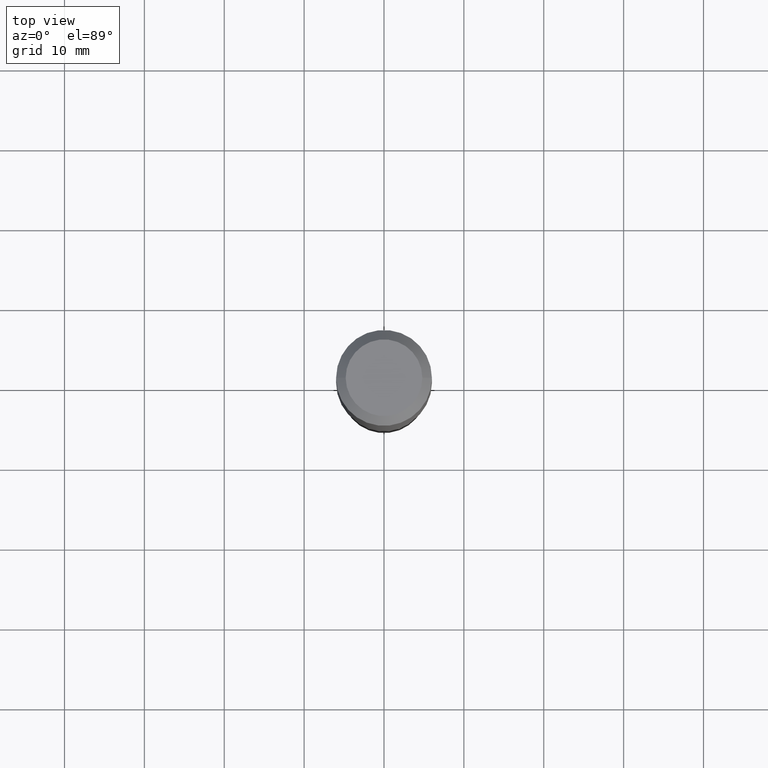
[diagram: clean part render]
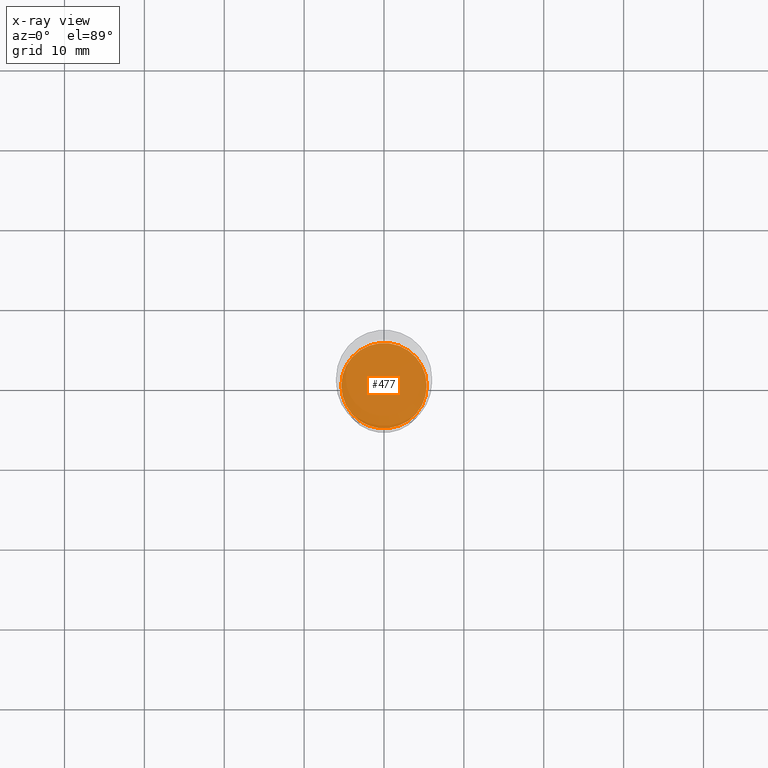
[diagram: x-ray — body ghosted, one internal face saturated and labeled with its STEP entity id]
A machine part, top view, then the same camera in x-ray: the body is ghosted and one INTERNAL B-rep face — a face not visible from any outside direction — is saturated and labeled: STEP entity #477.
In plain terms, the highlighted planar face has unit normal (-0, 0, 1).
Its self-contained STEP definition (entity closure, byte-faithful):
#67 = CARTESIAN_POINT ( 'NONE',  ( 5.564175174713041439E-29, -7.944167490269808896E-15, -2.275300000000000100 ) ) ;
#70 = ORIENTED_EDGE ( 'NONE', *, *, #233, .F. ) ;
#82 = AXIS2_PLACEMENT_3D ( 'NONE', #333, #181, #259 ) ;
#102 = AXIS2_PLACEMENT_3D ( 'NONE', #67, #227, #384 ) ;
#141 = EDGE_LOOP ( 'NONE', ( #70, #423 ) ) ;
#164 = VERTEX_POINT ( 'NONE', #501 ) ;
#176 = FACE_OUTER_BOUND ( 'NONE', #141, .T. ) ;
#181 = DIRECTION ( 'NONE',  ( -2.438088387897960049E-29, 3.491481338843145188E-15, 1.000000000000000000 ) ) ;
#183 = VERTEX_POINT ( 'NONE', #421 ) ;
#227 = DIRECTION ( 'NONE',  ( -2.445468806185136597E-29, 3.491481338843145583E-15, 1.000000000000000000 ) ) ;
#233 = EDGE_CURVE ( 'NONE', #164, #183, #300, .T. ) ;
#259 = DIRECTION ( 'NONE',  ( 1.000000000000000000, -6.982962677686265922E-15, 4.876176775795935793E-29 ) ) ;
#300 = CIRCLE ( 'NONE', #363, 0.2104499999999999982 ) ;
#318 = CIRCLE ( 'NONE', #102, 0.2104499999999999982 ) ;
#333 = CARTESIAN_POINT ( 'NONE',  ( 3.501713020317568181E-29, -1.089773068341986778E-14, -2.275300000000000100 ) ) ;
#345 = DIRECTION ( 'NONE',  ( -2.445468806185136597E-29, 3.491481338843145583E-15, 1.000000000000000000 ) ) ;
#353 = DIRECTION ( 'NONE',  ( 1.000000000000000000, -6.982962677686264344E-15, 0.000000000000000000 ) ) ;
#363 = AXIS2_PLACEMENT_3D ( 'NONE', #388, #345, #353 ) ;
#384 = DIRECTION ( 'NONE',  ( 1.000000000000000000, -6.982962677686264344E-15, 0.000000000000000000 ) ) ;
#388 = CARTESIAN_POINT ( 'NONE',  ( 5.564175174713041439E-29, -7.944167490269808896E-15, -2.275300000000000100 ) ) ;
#421 = CARTESIAN_POINT ( 'NONE',  ( -0.2104499999999999982, -6.446181075688567458E-15, -2.275300000000000100 ) ) ;
#423 = ORIENTED_EDGE ( 'NONE', *, *, #510, .F. ) ;
#477 = ADVANCED_FACE ( 'NONE', ( #176 ), #500, .F. ) ;
#500 = PLANE ( 'NONE',  #82 ) ;
#501 = CARTESIAN_POINT ( 'NONE',  ( 0.2104499999999999982, -9.413731985788883453E-15, -2.275300000000000100 ) ) ;
#510 = EDGE_CURVE ( 'NONE', #183, #164, #318, .T. ) ;